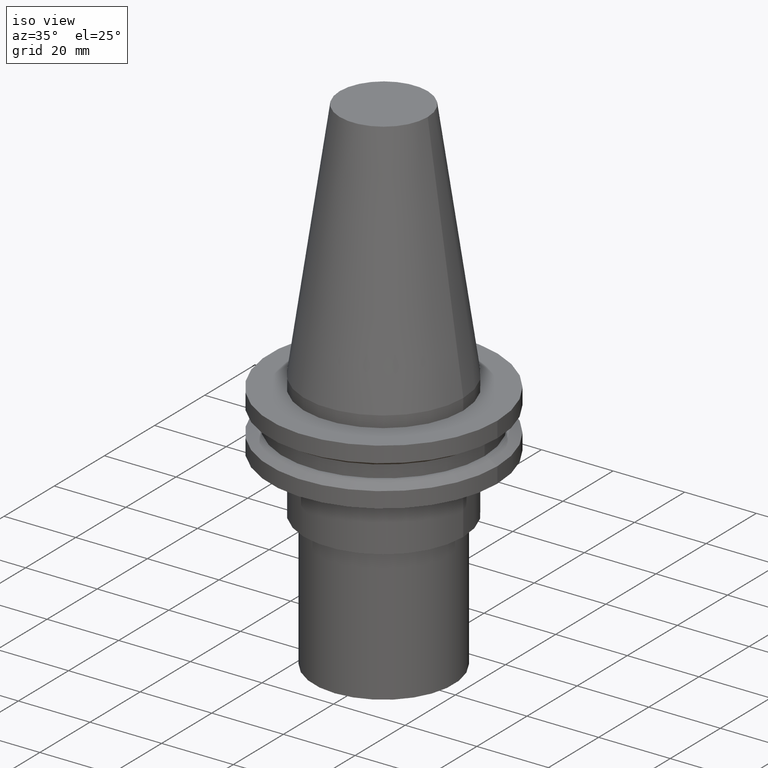
[diagram: clean part render]
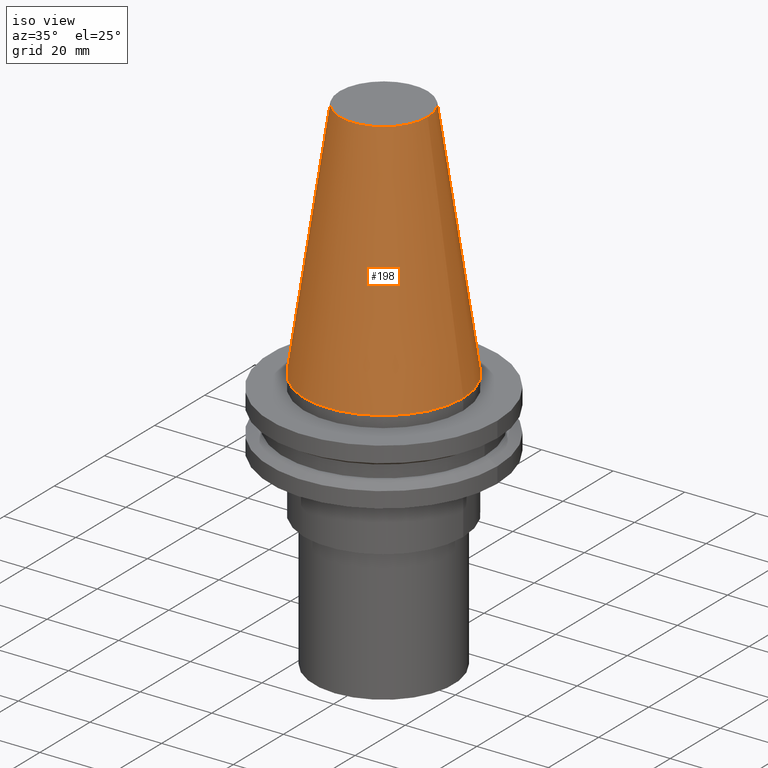
[diagram: same view with one face highlighted and labeled with its STEP entity id]
A machine part, iso view. The second image highlights one B-rep face of the part: STEP entity #198.
In plain terms, the highlighted conical surface has half-angle 8.297 deg.
Its self-contained STEP definition (entity closure, byte-faithful):
#6 = EDGE_LOOP ( 'NONE', ( #105 ) ) ;
#37 = CIRCLE ( 'NONE', #250, 22.22500000000000142 ) ;
#67 = CONICAL_SURFACE ( 'NONE', #230, 22.22500000000000142, 0.1448138465474119174 ) ;
#83 = AXIS2_PLACEMENT_3D ( 'NONE', #213, #184, #335 ) ;
#89 = DIRECTION ( 'NONE',  ( -0.000000000000000000, -0.000000000000000000, 1.000000000000000000 ) ) ;
#96 = FACE_BOUND ( 'NONE', #6, .T. ) ;
#100 = CARTESIAN_POINT ( 'NONE',  ( 22.22500000000000142, 0.000000000000000000, 0.000000000000000000 ) ) ;
#105 = ORIENTED_EDGE ( 'NONE', *, *, #130, .F. ) ;
#126 = CARTESIAN_POINT ( 'NONE',  ( 12.27178102086201150, 0.000000000000000000, 68.25000000000000000 ) ) ;
#130 = EDGE_CURVE ( 'NONE', #387, #387, #256, .T. ) ;
#161 = CARTESIAN_POINT ( 'NONE',  ( 0.000000000000000000, 0.000000000000000000, 0.000000000000000000 ) ) ;
#169 = EDGE_CURVE ( 'NONE', #194, #194, #37, .T. ) ;
#184 = DIRECTION ( 'NONE',  ( -0.000000000000000000, -0.000000000000000000, 1.000000000000000000 ) ) ;
#194 = VERTEX_POINT ( 'NONE', #100 ) ;
#198 = ADVANCED_FACE ( 'NONE', ( #96, #215 ), #67, .T. ) ;
#203 = EDGE_LOOP ( 'NONE', ( #260 ) ) ;
#213 = CARTESIAN_POINT ( 'NONE',  ( 0.000000000000000000, 0.000000000000000000, 68.25000000000000000 ) ) ;
#215 = FACE_OUTER_BOUND ( 'NONE', #203, .T. ) ;
#230 = AXIS2_PLACEMENT_3D ( 'NONE', #328, #248, #331 ) ;
#248 = DIRECTION ( 'NONE',  ( 0.000000000000000000, 0.000000000000000000, -1.000000000000000000 ) ) ;
#250 = AXIS2_PLACEMENT_3D ( 'NONE', #161, #89, #333 ) ;
#256 = CIRCLE ( 'NONE', #83, 12.27178102086201150 ) ;
#260 = ORIENTED_EDGE ( 'NONE', *, *, #169, .T. ) ;
#328 = CARTESIAN_POINT ( 'NONE',  ( 0.000000000000000000, 0.000000000000000000, 0.000000000000000000 ) ) ;
#331 = DIRECTION ( 'NONE',  ( -1.000000000000000000, 0.000000000000000000, 0.000000000000000000 ) ) ;
#333 = DIRECTION ( 'NONE',  ( 1.000000000000000000, 0.000000000000000000, 0.000000000000000000 ) ) ;
#335 = DIRECTION ( 'NONE',  ( 1.000000000000000000, 0.000000000000000000, 0.000000000000000000 ) ) ;
#387 = VERTEX_POINT ( 'NONE', #126 ) ;